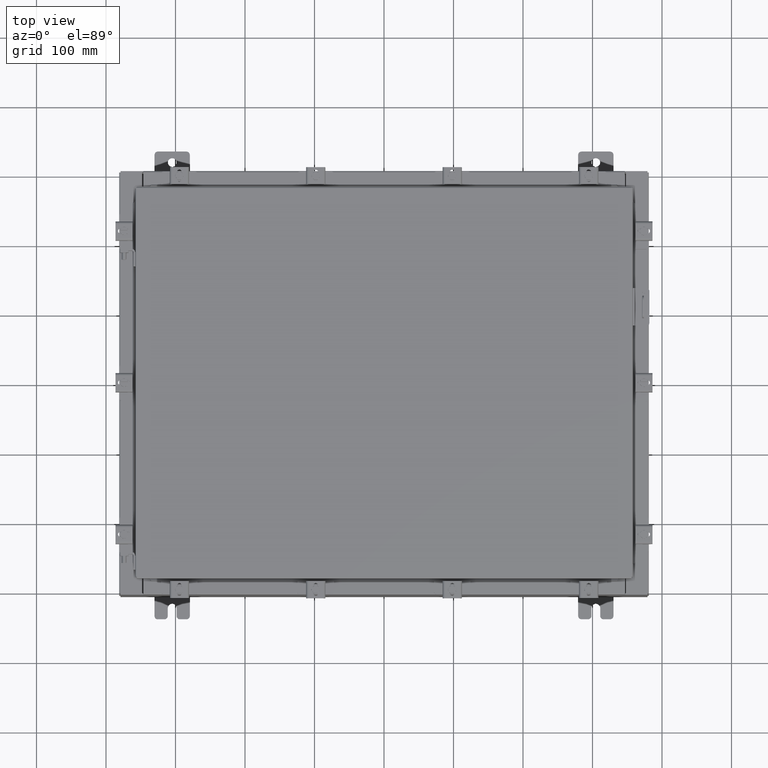
[diagram: clean part render]
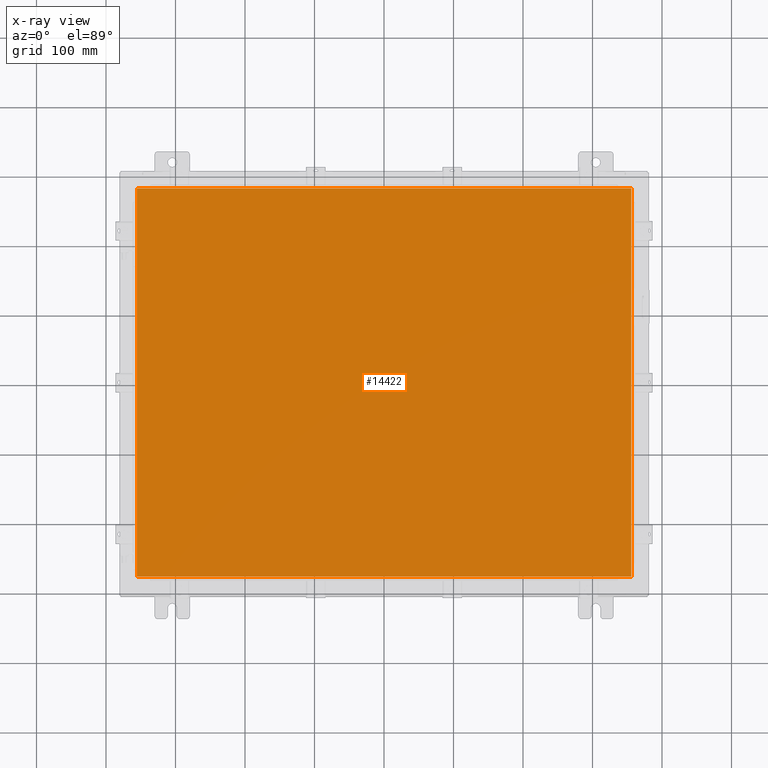
[diagram: x-ray — body ghosted, one internal face saturated and labeled with its STEP entity id]
A machine part, top view, then the same camera in x-ray: the body is ghosted and one INTERNAL B-rep face — a face not visible from any outside direction — is saturated and labeled: STEP entity #14422.
In plain terms, the highlighted planar face has unit normal (0, 0, -1).
Its self-contained STEP definition (entity closure, byte-faithful):
#1117 = CARTESIAN_POINT ( 'NONE',  ( 14.00630000000000100, -11.00630000000000000, -0.07470000000000015500 ) ) ;
#3972 = CARTESIAN_POINT ( 'NONE',  ( 14.00630000000000100, 11.00630000000000000, -0.07470000000000015500 ) ) ;
#4566 = CARTESIAN_POINT ( 'NONE',  ( 14.00630000000000100, 11.00630000000000000, -0.07470000000000125200 ) ) ;
#4896 = CARTESIAN_POINT ( 'NONE',  ( 14.00630000000000100, -11.00630000000000000, -0.07470000000000015500 ) ) ;
#5056 = PLANE ( 'NONE',  #6589 ) ;
#6083 = VECTOR ( 'NONE', #6675, 39.37007874015748100 ) ;
#6589 = AXIS2_PLACEMENT_3D ( 'NONE', #10210, #17322, #6822 ) ;
#6612 = VECTOR ( 'NONE', #16852, 39.37007874015748100 ) ;
#6675 = DIRECTION ( 'NONE',  ( 0.0000000000000000000, 1.000000000000000000, 0.0000000000000000000 ) ) ;
#6822 = DIRECTION ( 'NONE',  ( -1.000000000000000000, 0.0000000000000000000, -0.0000000000000000000 ) ) ;
#7855 = LINE ( 'NONE', #22476, #11925 ) ;
#8356 = ORIENTED_EDGE ( 'NONE', *, *, #15368, .F. ) ;
#8428 = DIRECTION ( 'NONE',  ( 0.0000000000000000000, -1.000000000000000000, 0.0000000000000000000 ) ) ;
#8581 = VERTEX_POINT ( 'NONE', #1117 ) ;
#9115 = EDGE_LOOP ( 'NONE', ( #8356, #14304, #17024, #11718 ) ) ;
#10034 = LINE ( 'NONE', #19147, #14148 ) ;
#10210 = CARTESIAN_POINT ( 'NONE',  ( 0.0000000000000000000, 0.0000000000000000000, -0.07470000000000015500 ) ) ;
#10773 = VERTEX_POINT ( 'NONE', #22060 ) ;
#11718 = ORIENTED_EDGE ( 'NONE', *, *, #15939, .F. ) ;
#11925 = VECTOR ( 'NONE', #8428, 39.37007874015748100 ) ;
#12774 = VERTEX_POINT ( 'NONE', #3972 ) ;
#14148 = VECTOR ( 'NONE', #20872, 39.37007874015748100 ) ;
#14304 = ORIENTED_EDGE ( 'NONE', *, *, #18026, .F. ) ;
#14418 = EDGE_CURVE ( 'NONE', #20745, #10773, #7855, .T. ) ;
#14422 = ADVANCED_FACE ( 'NONE', ( #16629 ), #5056, .T. ) ;
#15368 = EDGE_CURVE ( 'NONE', #8581, #12774, #20075, .T. ) ;
#15916 = LINE ( 'NONE', #4566, #6612 ) ;
#15939 = EDGE_CURVE ( 'NONE', #12774, #20745, #15916, .T. ) ;
#16629 = FACE_OUTER_BOUND ( 'NONE', #9115, .T. ) ;
#16852 = DIRECTION ( 'NONE',  ( -1.000000000000000000, -0.0000000000000000000, -0.0000000000000000000 ) ) ;
#17024 = ORIENTED_EDGE ( 'NONE', *, *, #14418, .F. ) ;
#17322 = DIRECTION ( 'NONE',  ( 0.0000000000000000000, 0.0000000000000000000, -1.000000000000000000 ) ) ;
#17737 = CARTESIAN_POINT ( 'NONE',  ( -14.00629999999999600, 11.00630000000000000, -0.07470000000000015500 ) ) ;
#18026 = EDGE_CURVE ( 'NONE', #10773, #8581, #10034, .T. ) ;
#19147 = CARTESIAN_POINT ( 'NONE',  ( -14.00629999999999600, -11.00630000000000000, -0.07470000000000015500 ) ) ;
#20075 = LINE ( 'NONE', #4896, #6083 ) ;
#20745 = VERTEX_POINT ( 'NONE', #17737 ) ;
#20872 = DIRECTION ( 'NONE',  ( 1.000000000000000000, -0.0000000000000000000, -0.0000000000000000000 ) ) ;
#22060 = CARTESIAN_POINT ( 'NONE',  ( -14.00629999999999600, -11.00630000000000000, -0.07470000000000015500 ) ) ;
#22476 = CARTESIAN_POINT ( 'NONE',  ( -14.00629999999999600, 11.00630000000000000, -0.07470000000000015500 ) ) ;